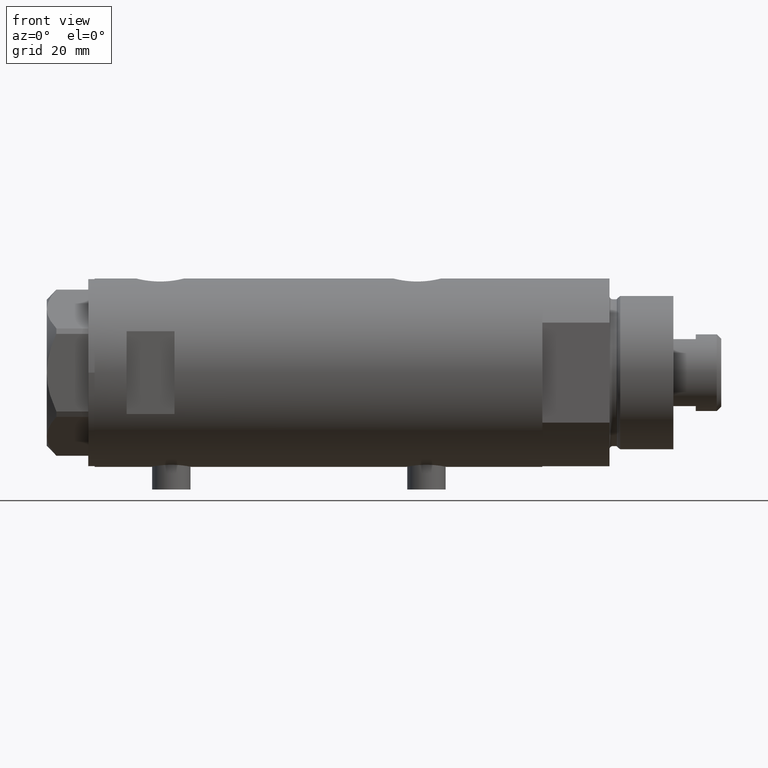
[diagram: clean part render]
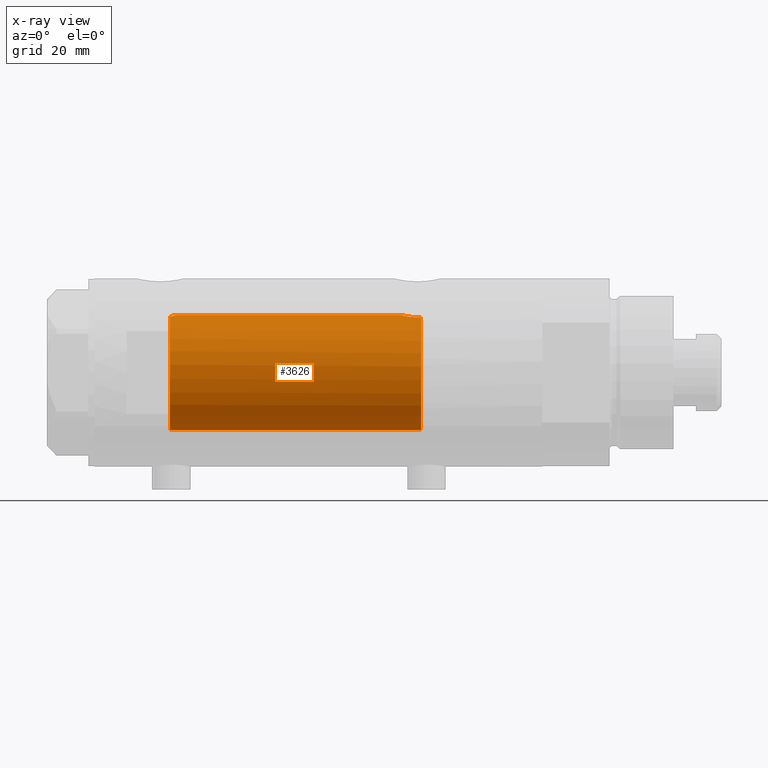
[diagram: x-ray — body ghosted, one internal face saturated and labeled with its STEP entity id]
A machine part, front view, then the same camera in x-ray: the body is ghosted and one INTERNAL B-rep face — a face not visible from any outside direction — is saturated and labeled: STEP entity #3626.
In plain terms, the highlighted cylindrical surface (partial cylindrical patch) has radius 18 mm, axis along (1, 0, -0).
Its self-contained STEP definition (entity closure, byte-faithful):
#19 = CARTESIAN_POINT ( 'NONE',  ( 17.98578085412772865, -0.7388632979187818028, -26.08783263922209983 ) ) ;
#37 = VECTOR ( 'NONE', #2690, 1000.000000000000000 ) ;
#171 = ORIENTED_EDGE ( 'NONE', *, *, #3952, .F. ) ;
#249 = DIRECTION ( 'NONE',  ( -1.000000000000000000, 0.000000000000000000, 0.000000000000000000 ) ) ;
#295 = CARTESIAN_POINT ( 'NONE',  ( 0.000000000000000000, 0.000000000000000000, -32.09999999999998721 ) ) ;
#321 = CARTESIAN_POINT ( 'NONE',  ( 17.32819690210316210, -4.871720223791780491, -30.63420793424217692 ) ) ;
#362 = FACE_OUTER_BOUND ( 'NONE', #3159, .T. ) ;
#380 = LINE ( 'NONE', #3121, #3426 ) ;
#381 = CARTESIAN_POINT ( 'NONE',  ( 0.000000000000000000, 0.000000000000000000, 70.09999999999999432 ) ) ;
#410 = ORIENTED_EDGE ( 'NONE', *, *, #1461, .F. ) ;
#724 = CARTESIAN_POINT ( 'NONE',  ( 17.85233710017094566, -2.306965814323742148, -26.61276266371617893 ) ) ;
#734 = VERTEX_POINT ( 'NONE', #3874 ) ;
#737 = CARTESIAN_POINT ( 'NONE',  ( 17.63516507807923261, -3.613050995810185739, -27.62150009659157490 ) ) ;
#740 = CARTESIAN_POINT ( 'NONE',  ( 17.63693340989344449, -3.604419224588191639, 46.31212766824009464 ) ) ;
#806 = CARTESIAN_POINT ( 'NONE',  ( 17.91197612045793264, -1.808534151376003374, 45.06883769349536095 ) ) ;
#908 = VERTEX_POINT ( 'NONE', #3933 ) ;
#999 = CARTESIAN_POINT ( 'NONE',  ( 17.34665145232711581, -4.806531086046565093, -31.73913341666349197 ) ) ;
#1016 = DIRECTION ( 'NONE',  ( -0.000000000000000000, -0.000000000000000000, -1.000000000000000000 ) ) ;
#1023 = VERTEX_POINT ( 'NONE', #1319 ) ;
#1040 = DIRECTION ( 'NONE',  ( 0.000000000000000000, 0.000000000000000000, 1.000000000000000000 ) ) ;
#1062 = DIRECTION ( 'NONE',  ( -0.000000000000000000, -0.000000000000000000, -1.000000000000000000 ) ) ;
#1097 = CARTESIAN_POINT ( 'NONE',  ( 17.33821808943282861, -4.836569767017237176, -30.25823404381377557 ) ) ;
#1112 = EDGE_CURVE ( 'NONE', #2605, #908, #3923, .T. ) ;
#1115 = CARTESIAN_POINT ( 'NONE',  ( 17.91207243579358277, -1.808254927071299534, -26.36838658940774494 ) ) ;
#1166 = B_SPLINE_CURVE_WITH_KNOTS ( 'NONE', 3,
 ( #2522, #3893, #2459, #2819, #806, #1430, #3827, #2172, #740, #4188 ),
 .UNSPECIFIED., .F., .F.,
 ( 4, 2, 2, 2, 4 ),
 ( 2.959341624767055034E-19, 0.001102956581910075669, 0.002205913163820150905, 0.003308869745730224840, 0.004411826327640299208 ),
 .UNSPECIFIED. ) ;
#1319 = CARTESIAN_POINT ( 'NONE',  ( -18.00000000000000000, 0.000000000000000000, -32.09999999999998721 ) ) ;
#1320 = CARTESIAN_POINT ( 'NONE',  ( -18.00000000000000000, 0.000000000000000000, 70.09999999999999432 ) ) ;
#1404 = CARTESIAN_POINT ( 'NONE',  ( 17.76113839466168542, -2.926207082530025261, -27.00911996042637142 ) ) ;
#1417 = AXIS2_PLACEMENT_3D ( 'NONE', #295, #1672, #249 ) ;
#1423 = CARTESIAN_POINT ( 'NONE',  ( 17.49057517990651434, -4.255095079290339477, -28.51249222525177984 ) ) ;
#1430 = CARTESIAN_POINT ( 'NONE',  ( 17.83332390923721178, -2.466220319593706911, 45.39048875048363385 ) ) ;
#1461 = EDGE_CURVE ( 'NONE', #734, #908, #1166, .T. ) ;
#1566 = EDGE_CURVE ( 'NONE', #2852, #2687, #4010, .T. ) ;
#1632 = ORIENTED_EDGE ( 'NONE', *, *, #2079, .T. ) ;
#1672 = DIRECTION ( 'NONE',  ( 0.000000000000000000, 0.000000000000000000, -1.000000000000000000 ) ) ;
#1728 = ORIENTED_EDGE ( 'NONE', *, *, #1112, .T. ) ;
#1735 = CARTESIAN_POINT ( 'NONE',  ( 17.99716838826709520, -0.3690012331666936984, -26.04544422515623125 ) ) ;
#1759 = CARTESIAN_POINT ( 'NONE',  ( 17.53680980608542939, -4.063678955652870073, -28.20014584461345919 ) ) ;
#2079 = EDGE_CURVE ( 'NONE', #734, #2687, #380, .T. ) ;
#2080 = CARTESIAN_POINT ( 'NONE',  ( 17.94411621822183633, -1.462318180775793008, -26.24532018047458592 ) ) ;
#2081 = LINE ( 'NONE', #1320, #37 ) ;
#2104 = CARTESIAN_POINT ( 'NONE',  ( 17.78501549309440932, -2.778062367771705343, -26.90196575702888282 ) ) ;
#2172 = CARTESIAN_POINT ( 'NONE',  ( 17.68806959355790909, -3.349106256179507746, 46.05213344176306833 ) ) ;
#2391 = CARTESIAN_POINT ( 'NONE',  ( 18.00000000000000000, 5.958021437579254357E-16, -26.03499999999998948 ) ) ;
#2459 = CARTESIAN_POINT ( 'NONE',  ( 17.98842269988416120, -0.7385803848020523477, 44.77734794098787319 ) ) ;
#2474 = CARTESIAN_POINT ( 'NONE',  ( 17.37991340314490785, -4.684530256828848493, -29.53638461192320364 ) ) ;
#2476 = CARTESIAN_POINT ( 'NONE',  ( -18.00000000000000000, 0.000000000000000000, 46.59999999999999432 ) ) ;
#2522 = CARTESIAN_POINT ( 'NONE',  ( 18.00000000000000000, 0.000000000000000000, 44.73499999999999233 ) ) ;
#2569 = AXIS2_PLACEMENT_3D ( 'NONE', #381, #1016, #2758 ) ;
#2605 = VERTEX_POINT ( 'NONE', #2476 ) ;
#2687 = VERTEX_POINT ( 'NONE', #2391 ) ;
#2690 = DIRECTION ( 'NONE',  ( -0.000000000000000000, -0.000000000000000000, -1.000000000000000000 ) ) ;
#2739 = DIRECTION ( 'NONE',  ( 1.000000000000000000, 0.000000000000000000, 0.000000000000000000 ) ) ;
#2758 = DIRECTION ( 'NONE',  ( -1.000000000000000000, 0.000000000000000000, 0.000000000000000000 ) ) ;
#2784 = ORIENTED_EDGE ( 'NONE', *, *, #1566, .F. ) ;
#2795 = CARTESIAN_POINT ( 'NONE',  ( 18.00000000000000000, -0.1843597763241284493, -26.03499999999998948 ) ) ;
#2815 = CARTESIAN_POINT ( 'NONE',  ( 17.68752450041759161, -3.351772203450734899, -27.35493447381010768 ) ) ;
#2819 = CARTESIAN_POINT ( 'NONE',  ( 17.94467453319815320, -1.455166008437401626, 44.94318072553844701 ) ) ;
#2852 = VERTEX_POINT ( 'NONE', #3665 ) ;
#2894 = ORIENTED_EDGE ( 'NONE', *, *, #4267, .T. ) ;
#3121 = CARTESIAN_POINT ( 'NONE',  ( 18.00000000000000000, 2.204364238465235033E-15, 70.09999999999999432 ) ) ;
#3159 = EDGE_LOOP ( 'NONE', ( #410, #1632, #2784, #2894, #171, #1728 ) ) ;
#3174 = CYLINDRICAL_SURFACE ( 'NONE', #2569, 18.00000000000000000 ) ;
#3425 = CARTESIAN_POINT ( 'NONE',  ( 17.33258131920084466, -4.856098292894135859, -31.37181853595666325 ) ) ;
#3426 = VECTOR ( 'NONE', #1062, 1000.000000000000000 ) ;
#3475 = CARTESIAN_POINT ( 'NONE',  ( 17.97721305204033726, -0.9231636963562669385, -26.11982822371819424 ) ) ;
#3533 = CARTESIAN_POINT ( 'NONE',  ( 18.00000000000000000, 5.958021437579254357E-16, -26.03499999999998948 ) ) ;
#3626 = ADVANCED_FACE ( 'NONE', ( #362 ), #3174, .F. ) ;
#3665 = CARTESIAN_POINT ( 'NONE',  ( 17.37157951943346035, -4.714681855650494136, -32.09999999999999432 ) ) ;
#3809 = CARTESIAN_POINT ( 'NONE',  ( 17.83055549281851881, -2.468946622824476300, -26.70402443991356378 ) ) ;
#3827 = CARTESIAN_POINT ( 'NONE',  ( 17.78689333688353003, -2.776822659814079941, 45.58837617090290451 ) ) ;
#3874 = CARTESIAN_POINT ( 'NONE',  ( 18.00000000000000000, 0.000000000000000000, 44.73499999999999233 ) ) ;
#3893 = CARTESIAN_POINT ( 'NONE',  ( 18.00000000000000355, -0.3730735969061054202, 44.73499999999999233 ) ) ;
#3923 = CIRCLE ( 'NONE', #3991, 18.00000000000000000 ) ;
#3933 = CARTESIAN_POINT ( 'NONE',  ( 17.58783030962034744, -3.829911878881814058, 46.59999999999999432 ) ) ;
#3952 = EDGE_CURVE ( 'NONE', #2605, #1023, #2081, .T. ) ;
#3991 = AXIS2_PLACEMENT_3D ( 'NONE', #4447, #1040, #2739 ) ;
#4010 = B_SPLINE_CURVE_WITH_KNOTS ( 'NONE', 3,
 ( #4095, #999, #3425, #321, #1097, #2474, #4135, #1423, #1759, #737, #2815, #1404, #2104, #3809, #724, #1115, #2080, #3475, #19, #1735, #2795, #3533 ),
 .UNSPECIFIED., .F., .F.,
 ( 4, 2, 2, 2, 2, 2, 2, 2, 2, 2, 4 ),
 ( 0.006434066725458731720, 0.007540005695425726351, 0.008645944665392712308, 0.009751883635359694796, 0.01085782260532668075, 0.01196376157529366671, 0.01251673106027715796, 0.01306970054526064920, 0.01417563951522762648, 0.01472860900021111773, 0.01528157848519460724 ),
 .UNSPECIFIED. ) ;
#4095 = CARTESIAN_POINT ( 'NONE',  ( 17.37157951943346035, -4.714681855650494136, -32.09999999999999432 ) ) ;
#4135 = CARTESIAN_POINT ( 'NONE',  ( 17.41145422212636618, -4.568075757751901556, -29.18573299053985792 ) ) ;
#4188 = CARTESIAN_POINT ( 'NONE',  ( 17.58783030962034744, -3.829911878881814058, 46.59999999999999432 ) ) ;
#4267 = EDGE_CURVE ( 'NONE', #2852, #1023, #4369, .T. ) ;
#4369 = CIRCLE ( 'NONE', #1417, 18.00000000000000000 ) ;
#4447 = CARTESIAN_POINT ( 'NONE',  ( 0.000000000000000000, 0.000000000000000000, 46.59999999999999432 ) ) ;